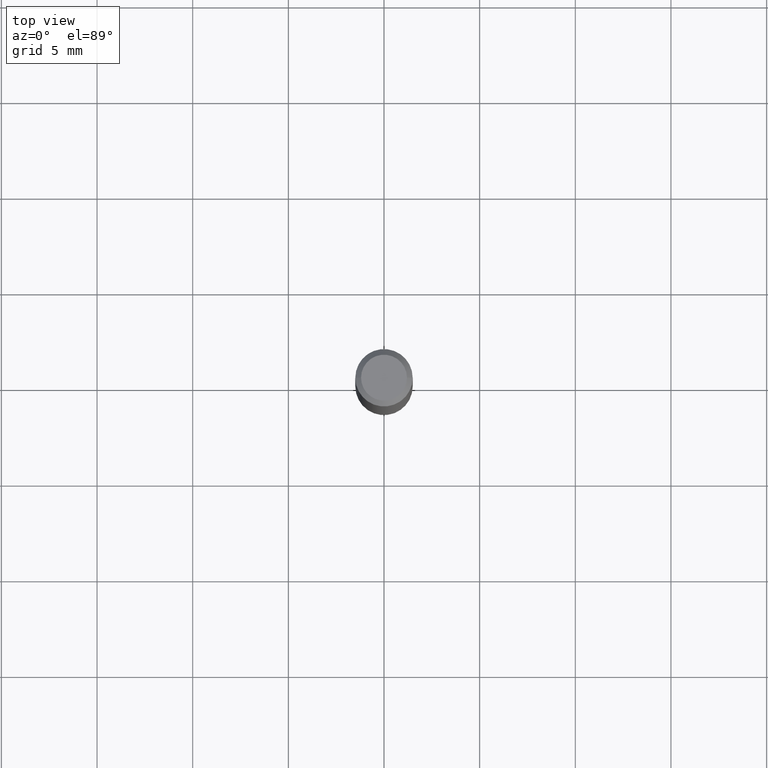
[diagram: clean part render]
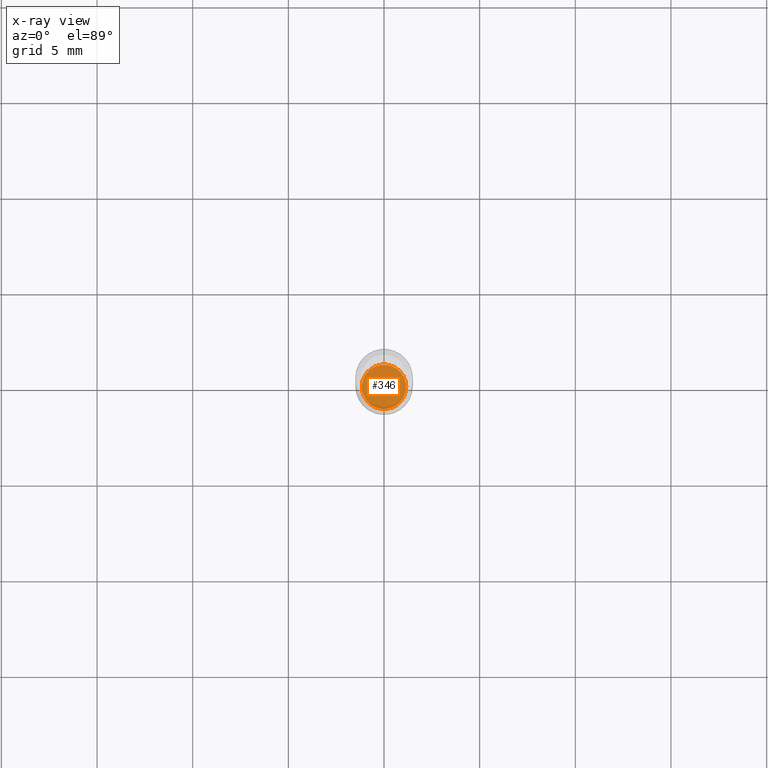
[diagram: x-ray — body ghosted, one internal face saturated and labeled with its STEP entity id]
A machine part, top view, then the same camera in x-ray: the body is ghosted and one INTERNAL B-rep face — a face not visible from any outside direction — is saturated and labeled: STEP entity #346.
In plain terms, the highlighted planar face has unit normal (-0, 0, 1).
Its self-contained STEP definition (entity closure, byte-faithful):
#20 = VERTEX_POINT ( 'NONE', #76 ) ;
#65 = CARTESIAN_POINT ( 'NONE',  ( 2.676565608369631794E-29, -3.821426325363822773E-15, -1.094499999999999806 ) ) ;
#76 = CARTESIAN_POINT ( 'NONE',  ( 0.04574999999999999900, -4.140896867867968970E-15, -1.094499999999999806 ) ) ;
#134 = AXIS2_PLACEMENT_3D ( 'NONE', #349, #187, #380 ) ;
#186 = EDGE_CURVE ( 'NONE', #329, #20, #423, .T. ) ;
#187 = DIRECTION ( 'NONE',  ( -2.438088387897960049E-29, 3.491481338843145188E-15, 1.000000000000000000 ) ) ;
#199 = AXIS2_PLACEMENT_3D ( 'NONE', #65, #452, #255 ) ;
#208 = DIRECTION ( 'NONE',  ( 1.000000000000000000, -6.982962677686264344E-15, 0.000000000000000000 ) ) ;
#255 = DIRECTION ( 'NONE',  ( 1.000000000000000000, -6.982962677686264344E-15, 0.000000000000000000 ) ) ;
#256 = EDGE_CURVE ( 'NONE', #20, #329, #270, .T. ) ;
#258 = EDGE_LOOP ( 'NONE', ( #443, #436 ) ) ;
#270 = CIRCLE ( 'NONE', #314, 0.04574999999999999900 ) ;
#296 = CARTESIAN_POINT ( 'NONE',  ( 2.676565608369631794E-29, -3.821426325363822773E-15, -1.094499999999999806 ) ) ;
#312 = PLANE ( 'NONE',  #134 ) ;
#314 = AXIS2_PLACEMENT_3D ( 'NONE', #296, #444, #208 ) ;
#329 = VERTEX_POINT ( 'NONE', #339 ) ;
#339 = CARTESIAN_POINT ( 'NONE',  ( -0.04574999999999999900, -3.493703796579465646E-15, -1.094499999999999806 ) ) ;
#346 = ADVANCED_FACE ( 'NONE', ( #419 ), #312, .F. ) ;
#349 = CARTESIAN_POINT ( 'NONE',  ( 2.676565608369631794E-29, -3.821426325363822773E-15, -1.094499999999999806 ) ) ;
#380 = DIRECTION ( 'NONE',  ( 1.000000000000000000, -6.982962677686265922E-15, 4.876176775795935793E-29 ) ) ;
#419 = FACE_OUTER_BOUND ( 'NONE', #258, .T. ) ;
#423 = CIRCLE ( 'NONE', #199, 0.04574999999999999900 ) ;
#436 = ORIENTED_EDGE ( 'NONE', *, *, #186, .F. ) ;
#443 = ORIENTED_EDGE ( 'NONE', *, *, #256, .F. ) ;
#444 = DIRECTION ( 'NONE',  ( -2.445468806185136597E-29, 3.491481338843145583E-15, 1.000000000000000000 ) ) ;
#452 = DIRECTION ( 'NONE',  ( -2.445468806185136597E-29, 3.491481338843145583E-15, 1.000000000000000000 ) ) ;